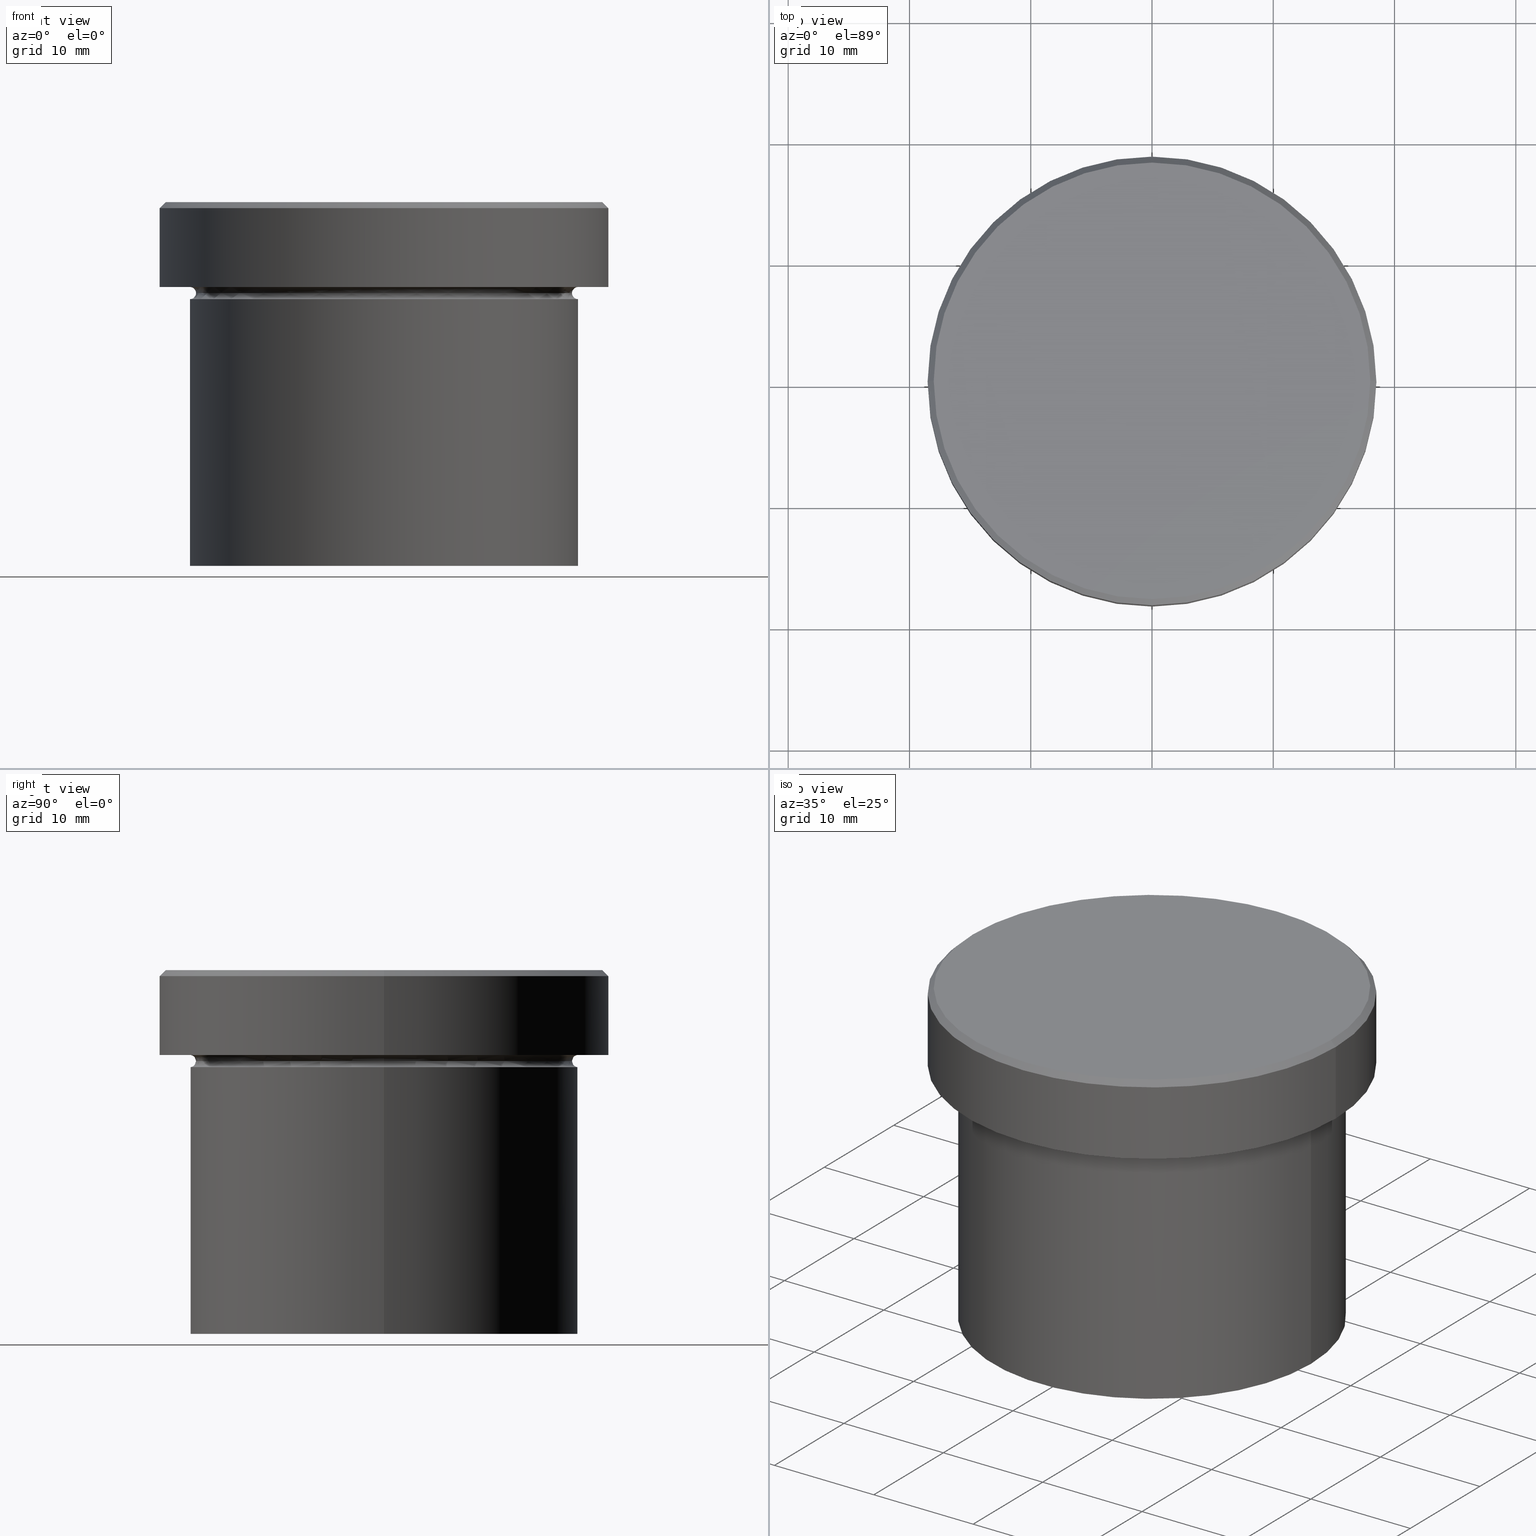
[diagram: canonical four-view strip — front | top / right | iso, engineering-drawing reading convention]
A machine part, canonical four-view strip (front | top / right | iso — engineering-drawing reading convention). The complete STEP part file that produces these views, byte-faithful:
ISO-10303-21;
HEADER;
FILE_DESCRIPTION (( 'STEP AP203' ),
    '1' );
FILE_NAME ('041a.STEP',
    '2024-01-02T19:17:21',
    ( '' ),
    ( '' ),
    'SwSTEP 2.0',
    'SolidWorks 2019',
    '' );
FILE_SCHEMA (( 'CONFIG_CONTROL_DESIGN' ));
ENDSEC;

DATA;
#1 = COORDINATED_UNIVERSAL_TIME_OFFSET ( 1, 0, .AHEAD. ) ;
#2 = DIRECTION ( 'NONE',  ( 1.000000000000000000, 0.000000000000000000, 0.000000000000000000 ) ) ;
#3 = AXIS2_PLACEMENT_3D ( 'NONE', #177, #66, #310 ) ;
#4 = DIRECTION ( 'NONE',  ( 1.000000000000000000, 0.000000000000000000, 0.000000000000000000 ) ) ;
#5 = AXIS2_PLACEMENT_3D ( 'NONE', #55, #352, #62 ) ;
#6 = PERSON_AND_ORGANIZATION_ROLE ( 'design_supplier' ) ;
#7 = CARTESIAN_POINT ( 'NONE',  ( -16.00000000000000000, 1.959434878635765131E-15, -7.500000000000000000 ) ) ;
#8 = PLANE ( 'NONE',  #178 ) ;
#9 = CARTESIAN_POINT ( 'NONE',  ( 0.000000000000000000, 0.000000000000000000, -30.00000000000000000 ) ) ;
#10 = DIRECTION ( 'NONE',  ( 1.000000000000000000, 0.000000000000000000, 0.000000000000000000 ) ) ;
#11 = EDGE_CURVE ( 'NONE', #261, #292, #179, .T. ) ;
#12 = CONICAL_SURFACE ( 'NONE', #195, 18.00000000000001066, 0.7853981633974378429 ) ;
#13 = DIRECTION ( 'NONE',  ( 1.000000000000000000, 0.000000000000000000, 0.000000000000000000 ) ) ;
#14 = DIRECTION ( 'NONE',  ( 0.000000000000000000, 0.000000000000000000, -1.000000000000000000 ) ) ;
#15 = FACE_OUTER_BOUND ( 'NONE', #109, .T. ) ;
#16 = CIRCLE ( 'NONE', #5, 18.50000000000000000 ) ;
#17 = VERTEX_POINT ( 'NONE', #374 ) ;
#18 = ORIENTED_EDGE ( 'NONE', *, *, #92, .F. ) ;
#19 = DIRECTION ( 'NONE',  ( 0.000000000000000000, 0.000000000000000000, -1.000000000000000000 ) ) ;
#20 = EDGE_CURVE ( 'NONE', #17, #227, #221, .T. ) ;
#21 = EDGE_LOOP ( 'NONE', ( #79, #380 ) ) ;
#22 = ORIENTED_EDGE ( 'NONE', *, *, #377, .F. ) ;
#23 = ORIENTED_EDGE ( 'NONE', *, *, #145, .T. ) ;
#24 = VERTEX_POINT ( 'NONE', #116 ) ;
#25 = ADVANCED_FACE ( 'NONE', ( #402 ), #256, .T. ) ;
#26 = EDGE_CURVE ( 'NONE', #192, #341, #82, .T. ) ;
#27 = PRODUCT_DEFINITION_FORMATION_WITH_SPECIFIED_SOURCE ( 'LIBOVOLN�', '', #40, .NOT_KNOWN. ) ;
#28 = AXIS2_PLACEMENT_3D ( 'NONE', #47, #283, #332 ) ;
#29 = CYLINDRICAL_SURFACE ( 'NONE', #398, 18.50000000000000000 ) ;
#30 = CARTESIAN_POINT ( 'NONE',  ( 0.000000000000000000, 0.000000000000000000, 0.000000000000000000 ) ) ;
#31 = PRODUCT_RELATED_PRODUCT_CATEGORY ( 'detail', '', ( #40 ) ) ;
#32 = LINE ( 'NONE', #203, #169 ) ;
#33 = CALENDAR_DATE ( 2024, 2, 1 ) ;
#34 = CARTESIAN_POINT ( 'NONE',  ( 0.000000000000000000, 0.000000000000000000, -7.500000000000000000 ) ) ;
#35 = EDGE_CURVE ( 'NONE', #263, #227, #162, .T. ) ;
#36 = DIRECTION ( 'NONE',  ( -0.000000000000000000, -0.000000000000000000, 1.000000000000000000 ) ) ;
#37 = DIRECTION ( 'NONE',  ( 1.000000000000000000, 0.000000000000000000, 0.000000000000000000 ) ) ;
#38 = CARTESIAN_POINT ( 'NONE',  ( 0.000000000000000000, 0.000000000000000000, 0.000000000000000000 ) ) ;
#39 = APPROVAL ( #172, 'NEUR�EN�' ) ;
#40 = PRODUCT ( '041a', '041a', '', ( #58 ) ) ;
#41 = AXIS2_PLACEMENT_3D ( 'NONE', #274, #59, #164 ) ;
#42 = CARTESIAN_POINT ( 'NONE',  ( -18.50000000000000000, 2.265596578422603396E-15, 0.000000000000000000 ) ) ;
#43 = DIRECTION ( 'NONE',  ( 1.000000000000000000, 0.000000000000000000, 0.000000000000000000 ) ) ;
#44 = CARTESIAN_POINT ( 'NONE',  ( 18.50000000000000000, 0.000000000000000000, -6.999999999999999112 ) ) ;
#45 = ORIENTED_EDGE ( 'NONE', *, *, #167, .T. ) ;
#46 = APPROVAL_PERSON_ORGANIZATION ( #301, #39, #132 ) ;
#47 = CARTESIAN_POINT ( 'NONE',  ( 0.000000000000000000, 0.000000000000000000, -7.500000000000000000 ) ) ;
#48 = ORIENTED_EDGE ( 'NONE', *, *, #146, .F. ) ;
#49 = ORIENTED_EDGE ( 'NONE', *, *, #20, .T. ) ;
#50 = ADVANCED_FACE ( 'NONE', ( #284 ), #219, .T. ) ;
#51 = EDGE_LOOP ( 'NONE', ( #122, #45, #49, #291 ) ) ;
#52 = ORIENTED_EDGE ( 'NONE', *, *, #146, .T. ) ;
#53 = APPROVAL ( #268, 'NEUR�EN�' ) ;
#54 = DIRECTION ( 'NONE',  ( 0.000000000000000000, 0.000000000000000000, 1.000000000000000000 ) ) ;
#55 = CARTESIAN_POINT ( 'NONE',  ( 0.000000000000000000, 0.000000000000000000, -0.5000000000000004441 ) ) ;
#56 = VECTOR ( 'NONE', #154, 1000.000000000000000 ) ;
#57 = ADVANCED_FACE ( 'NONE', ( #87 ), #264, .F. ) ;
#58 = MECHANICAL_CONTEXT ( 'NONE', #241, 'mechanical' ) ;
#59 = DIRECTION ( 'NONE',  ( 0.000000000000000000, 0.000000000000000000, -1.000000000000000000 ) ) ;
#60 = ADVANCED_FACE ( 'NONE', ( #340 ), #67, .F. ) ;
#61 = PERSON_AND_ORGANIZATION ( #191, #156 ) ;
#62 = DIRECTION ( 'NONE',  ( 1.000000000000000000, 0.000000000000000000, 0.000000000000000000 ) ) ;
#63 = CARTESIAN_POINT ( 'NONE',  ( 0.000000000000000000, 0.000000000000000000, -6.999999999999999112 ) ) ;
#64 = AXIS2_PLACEMENT_3D ( 'NONE', #200, #99, #2 ) ;
#65 = PERSON_AND_ORGANIZATION ( #191, #156 ) ;
#66 = DIRECTION ( 'NONE',  ( -1.224646799147353207E-16, 1.000000000000000000, 0.000000000000000000 ) ) ;
#67 = TOROIDAL_SURFACE ( 'NONE', #373, 16.00000000000000000, 0.5000000000000000000 ) ;
#68 = DIRECTION ( 'NONE',  ( -0.000000000000000000, -0.000000000000000000, 1.000000000000000000 ) ) ;
#69 = CARTESIAN_POINT ( 'NONE',  ( 0.000000000000000000, 0.000000000000000000, -6.999999999999999112 ) ) ;
#70 = LINE ( 'NONE', #72, #319 ) ;
#71 = FACE_OUTER_BOUND ( 'NONE', #331, .T. ) ;
#72 = CARTESIAN_POINT ( 'NONE',  ( 16.00000000000000000, 0.000000000000000000, 0.000000000000000000 ) ) ;
#73 = DIRECTION ( 'NONE',  ( 1.000000000000000000, 0.000000000000000000, 0.000000000000000000 ) ) ;
#74 = AXIS2_PLACEMENT_3D ( 'NONE', #337, #213, #43 ) ;
#75 = VECTOR ( 'NONE', #235, 1000.000000000000000 ) ;
#76 = AXIS2_PLACEMENT_3D ( 'NONE', #287, #80, #217 ) ;
#77 = ORIENTED_EDGE ( 'NONE', *, *, #342, .F. ) ;
#78 = EDGE_CURVE ( 'NONE', #266, #192, #244, .T. ) ;
#79 = ORIENTED_EDGE ( 'NONE', *, *, #311, .T. ) ;
#80 = DIRECTION ( 'NONE',  ( -0.000000000000000000, -0.000000000000000000, 1.000000000000000000 ) ) ;
#81 = APPROVAL_STATUS ( 'not_yet_approved' ) ;
#82 = LINE ( 'NONE', #369, #56 ) ;
#83 = SECURITY_CLASSIFICATION ( '', '', #134 ) ;
#84 = EDGE_CURVE ( 'NONE', #341, #292, #315, .T. ) ;
#85 = DIRECTION ( 'NONE',  ( 1.000000000000000000, 0.000000000000000000, 0.000000000000000000 ) ) ;
#86 = ORIENTED_EDGE ( 'NONE', *, *, #365, .T. ) ;
#87 = FACE_OUTER_BOUND ( 'NONE', #260, .T. ) ;
#88 = ORIENTED_EDGE ( 'NONE', *, *, #152, .T. ) ;
#89 = ORIENTED_EDGE ( 'NONE', *, *, #377, .T. ) ;
#90 = AXIS2_PLACEMENT_3D ( 'NONE', #108, #362, #110 ) ;
#91 = VERTEX_POINT ( 'NONE', #112 ) ;
#92 = EDGE_CURVE ( 'NONE', #192, #266, #379, .T. ) ;
#93 = COORDINATED_UNIVERSAL_TIME_OFFSET ( 1, 0, .AHEAD. ) ;
#94 = ORIENTED_EDGE ( 'NONE', *, *, #11, .F. ) ;
#95 = ORIENTED_EDGE ( 'NONE', *, *, #113, .T. ) ;
#96 = COORDINATED_UNIVERSAL_TIME_OFFSET ( 1, 0, .AHEAD. ) ;
#97 = CARTESIAN_POINT ( 'NONE',  ( 0.000000000000000000, 18.50000000000000000, -6.999999999999999112 ) ) ;
#98 = ADVANCED_FACE ( 'NONE', ( #215 ), #306, .T. ) ;
#99 = DIRECTION ( 'NONE',  ( -0.000000000000000000, -0.000000000000000000, 1.000000000000000000 ) ) ;
#100 = PERSON_AND_ORGANIZATION_ROLE ( 'creator' ) ;
#101 = FACE_OUTER_BOUND ( 'NONE', #361, .T. ) ;
#102 = CARTESIAN_POINT ( 'NONE',  ( 0.000000000000000000, 0.000000000000000000, -7.500000000000000000 ) ) ;
#103 = CARTESIAN_POINT ( 'NONE',  ( 0.000000000000000000, 0.000000000000000000, -6.999999999999999112 ) ) ;
#104 = DIRECTION ( 'NONE',  ( -0.7071067811865401342, 0.000000000000000000, -0.7071067811865549002 ) ) ;
#105 = AXIS2_PLACEMENT_3D ( 'NONE', #30, #54, #4 ) ;
#106 = AXIS2_PLACEMENT_3D ( 'NONE', #207, #282, #73 ) ;
#107 = ORIENTED_EDGE ( 'NONE', *, *, #298, .T. ) ;
#108 = CARTESIAN_POINT ( 'NONE',  ( 0.000000000000000000, 0.000000000000000000, 0.000000000000000000 ) ) ;
#109 = EDGE_LOOP ( 'NONE', ( #127, #52, #253, #77 ) ) ;
#110 = DIRECTION ( 'NONE',  ( 1.000000000000000000, 0.000000000000000000, 0.000000000000000000 ) ) ;
#111 = DIRECTION ( 'NONE',  ( -0.000000000000000000, -0.000000000000000000, 1.000000000000000000 ) ) ;
#112 = CARTESIAN_POINT ( 'NONE',  ( 18.50000000000000000, 0.000000000000000000, -0.5000000000000004441 ) ) ;
#113 = EDGE_CURVE ( 'NONE', #261, #263, #279, .T. ) ;
#114 = VERTEX_POINT ( 'NONE', #44 ) ;
#115 = CARTESIAN_POINT ( 'NONE',  ( 0.000000000000000000, 0.000000000000000000, -7.500000000000000000 ) ) ;
#116 = CARTESIAN_POINT ( 'NONE',  ( 18.00000000000001066, 2.234980408443920004E-15, 0.000000000000000000 ) ) ;
#117 = CC_DESIGN_PERSON_AND_ORGANIZATION_ASSIGNMENT ( #237, #6, ( #27 ) ) ;
#118 = CIRCLE ( 'NONE', #348, 18.50000000000000000 ) ;
#119 = AXIS2_PLACEMENT_3D ( 'NONE', #103, #383, #129 ) ;
#120 = ORIENTED_EDGE ( 'NONE', *, *, #11, .T. ) ;
#121 = ORIENTED_EDGE ( 'NONE', *, *, #185, .F. ) ;
#122 = ORIENTED_EDGE ( 'NONE', *, *, #113, .F. ) ;
#123 = ORIENTED_EDGE ( 'NONE', *, *, #342, .T. ) ;
#124 = TOROIDAL_SURFACE ( 'NONE', #408, 16.00000000000000000, 0.5000000000000000000 ) ;
#125 = AXIS2_PLACEMENT_3D ( 'NONE', #259, #339, #85 ) ;
#126 = CALENDAR_DATE ( 2024, 2, 1 ) ;
#127 = ORIENTED_EDGE ( 'NONE', *, *, #201, .T. ) ;
#128 = DATE_TIME_ROLE ( 'classification_date' ) ;
#129 = DIRECTION ( 'NONE',  ( 1.000000000000000000, 0.000000000000000000, 0.000000000000000000 ) ) ;
#130 = DATE_TIME_ROLE ( 'creation_date' ) ;
#131 = AXIS2_PLACEMENT_3D ( 'NONE', #387, #267, #299 ) ;
#132 = APPROVAL_ROLE ( '' ) ;
#133 = DIRECTION ( 'NONE',  ( -1.000000000000000000, 0.000000000000000000, 0.000000000000000000 ) ) ;
#134 = SECURITY_CLASSIFICATION_LEVEL ( 'unclassified' ) ;
#135 = ADVANCED_BREP_SHAPE_REPRESENTATION ( '041a', ( #289, #105 ), #378 ) ;
#136 = LINE ( 'NONE', #198, #174 ) ;
#137 = ADVANCED_FACE ( 'NONE', ( #15 ), #329, .T. ) ;
#138 = CARTESIAN_POINT ( 'NONE',  ( 0.000000000000000000, 0.000000000000000000, -8.000000000000000000 ) ) ;
#139 = DIRECTION ( 'NONE',  ( -1.000000000000000000, 0.000000000000000000, 0.000000000000000000 ) ) ;
#140 = DIRECTION ( 'NONE',  ( -0.000000000000000000, -0.000000000000000000, 1.000000000000000000 ) ) ;
#141 = VECTOR ( 'NONE', #367, 1000.000000000000000 ) ;
#142 = LOCAL_TIME ( 20, 17, 21.00000000000000000, #364 ) ;
#143 = AXIS2_PLACEMENT_3D ( 'NONE', #257, #184, #314 ) ;
#144 = ORIENTED_EDGE ( 'NONE', *, *, #147, .T. ) ;
#145 = EDGE_CURVE ( 'NONE', #266, #292, #70, .T. ) ;
#146 = EDGE_CURVE ( 'NONE', #345, #409, #250, .T. ) ;
#147 = EDGE_CURVE ( 'NONE', #91, #409, #118, .T. ) ;
#148 = ORIENTED_EDGE ( 'NONE', *, *, #26, .T. ) ;
#149 = DIRECTION ( 'NONE',  ( -0.000000000000000000, -0.000000000000000000, 1.000000000000000000 ) ) ;
#150 = CIRCLE ( 'NONE', #119, 18.50000000000000000 ) ;
#151 = ORIENTED_EDGE ( 'NONE', *, *, #147, .F. ) ;
#152 = EDGE_CURVE ( 'NONE', #24, #91, #136, .T. ) ;
#153 = EDGE_LOOP ( 'NONE', ( #407, #22, #86, #151 ) ) ;
#154 = DIRECTION ( 'NONE',  ( -0.000000000000000000, -0.000000000000000000, 1.000000000000000000 ) ) ;
#155 = ORIENTED_EDGE ( 'NONE', *, *, #236, .F. ) ;
#156 = ORGANIZATION ( 'NEUR�EN�', 'NEUR�EN�', '' ) ;
#157 = CLOSED_SHELL ( 'NONE', ( #170, #60, #57, #50, #137, #25, #98, #230, #223, #344, #354, #193, #180 ) ) ;
#158 = CARTESIAN_POINT ( 'NONE',  ( -16.00000000000000000, 0.000000000000000000, -7.500000000000000000 ) ) ;
#159 = ORIENTED_EDGE ( 'NONE', *, *, #20, .F. ) ;
#160 = ORIENTED_EDGE ( 'NONE', *, *, #167, .F. ) ;
#161 = TOROIDAL_SURFACE ( 'NONE', #41, 16.00000000000000000, 0.5000000000000000000 ) ;
#162 = CIRCLE ( 'NONE', #76, 16.00000000000000000 ) ;
#163 = PRODUCT_DEFINITION ( 'NEZN�M�', '', #27, #225 ) ;
#164 = DIRECTION ( 'NONE',  ( -1.000000000000000000, 0.000000000000000000, 0.000000000000000000 ) ) ;
#165 = DIRECTION ( 'NONE',  ( 1.000000000000000000, 0.000000000000000000, 0.000000000000000000 ) ) ;
#166 = CALENDAR_DATE ( 2024, 2, 1 ) ;
#167 = EDGE_CURVE ( 'NONE', #261, #17, #211, .T. ) ;
#168 = CC_DESIGN_APPROVAL ( #53, ( #27 ) ) ;
#169 = VECTOR ( 'NONE', #104, 1000.000000000000000 ) ;
#170 = ADVANCED_FACE ( 'NONE', ( #197 ), #313, .T. ) ;
#171 = DIRECTION ( 'NONE',  ( -0.000000000000000000, -0.000000000000000000, 1.000000000000000000 ) ) ;
#172 = APPROVAL_STATUS ( 'not_yet_approved' ) ;
#173 = FACE_OUTER_BOUND ( 'NONE', #51, .T. ) ;
#174 = VECTOR ( 'NONE', #234, 1000.000000000000000 ) ;
#175 = CC_DESIGN_APPROVAL ( #39, ( #163 ) ) ;
#176 = EDGE_CURVE ( 'NONE', #17, #261, #270, .T. ) ;
#177 = CARTESIAN_POINT ( 'NONE',  ( 16.00000000000000000, 1.959434878635765131E-15, -7.500000000000000000 ) ) ;
#178 = AXIS2_PLACEMENT_3D ( 'NONE', #97, #204, #245 ) ;
#179 = CIRCLE ( 'NONE', #143, 0.5000000000000004441 ) ;
#180 = ADVANCED_FACE ( 'NONE', ( #391 ), #12, .T. ) ;
#181 = ORIENTED_EDGE ( 'NONE', *, *, #254, .T. ) ;
#182 = CARTESIAN_POINT ( 'NONE',  ( 0.000000000000000000, 16.00000000000000000, -30.00000000000000000 ) ) ;
#183 = EDGE_LOOP ( 'NONE', ( #346, #148, #376, #222 ) ) ;
#184 = DIRECTION ( 'NONE',  ( 0.000000000000000000, -1.000000000000000000, 0.000000000000000000 ) ) ;
#185 = EDGE_CURVE ( 'NONE', #409, #91, #16, .T. ) ;
#186 = AXIS2_PLACEMENT_3D ( 'NONE', #34, #278, #165 ) ;
#187 = ORIENTED_EDGE ( 'NONE', *, *, #92, .T. ) ;
#188 = APPROVAL_PERSON_ORGANIZATION ( #233, #53, #240 ) ;
#189 = ORIENTED_EDGE ( 'NONE', *, *, #78, .F. ) ;
#190 = EDGE_LOOP ( 'NONE', ( #381, #187, #23, #317 ) ) ;
#191 = PERSON ( 'NEUR�EN�', 'NEUR�EN�', 'NEUR�EN�', ('NEUR�EN�'), ('NEUR�EN�'), ('NEUR�EN�') ) ;
#192 = VERTEX_POINT ( 'NONE', #305 ) ;
#193 = ADVANCED_FACE ( 'NONE', ( #173 ), #161, .F. ) ;
#194 = DATE_AND_TIME ( #126, #212 ) ;
#195 = AXIS2_PLACEMENT_3D ( 'NONE', #324, #302, #133 ) ;
#196 = PERSON_AND_ORGANIZATION_ROLE ( 'design_owner' ) ;
#197 = FACE_OUTER_BOUND ( 'NONE', #394, .T. ) ;
#198 = CARTESIAN_POINT ( 'NONE',  ( 18.00000000000001066, 2.204364238465237006E-15, 0.000000000000000000 ) ) ;
#199 =( NAMED_UNIT ( * ) PLANE_ANGLE_UNIT ( ) SI_UNIT ( $, .RADIAN. ) );
#200 = CARTESIAN_POINT ( 'NONE',  ( 0.000000000000000000, 0.000000000000000000, 0.000000000000000000 ) ) ;
#201 = EDGE_CURVE ( 'NONE', #114, #345, #150, .T. ) ;
#202 = CIRCLE ( 'NONE', #262, 0.5000000000000004441 ) ;
#203 = CARTESIAN_POINT ( 'NONE',  ( -18.00000000000001066, 0.000000000000000000, 0.000000000000000000 ) ) ;
#204 = DIRECTION ( 'NONE',  ( 0.000000000000000000, 0.000000000000000000, -1.000000000000000000 ) ) ;
#205 = DIRECTION ( 'NONE',  ( 0.000000000000000000, 0.000000000000000000, -1.000000000000000000 ) ) ;
#206 =( LENGTH_UNIT ( ) NAMED_UNIT ( * ) SI_UNIT ( .MILLI., .METRE. ) );
#207 = CARTESIAN_POINT ( 'NONE',  ( 0.000000000000000000, 0.000000000000000000, -8.000000000000000000 ) ) ;
#208 = CC_DESIGN_DATE_AND_TIME_ASSIGNMENT ( #382, #130, ( #163 ) ) ;
#209 = CARTESIAN_POINT ( 'NONE',  ( -18.50000000000000000, 2.265596578422603396E-15, -0.5000000000000004441 ) ) ;
#210 = CARTESIAN_POINT ( 'NONE',  ( 15.50000000000000000, 0.000000000000000000, -7.500000000000000000 ) ) ;
#211 = CIRCLE ( 'NONE', #232, 15.50000000000000000 ) ;
#212 = LOCAL_TIME ( 20, 17, 21.00000000000000000, #93 ) ;
#213 = DIRECTION ( 'NONE',  ( 0.000000000000000000, -0.000000000000000000, 1.000000000000000000 ) ) ;
#214 = AXIS2_PLACEMENT_3D ( 'NONE', #158, #399, #255 ) ;
#215 = FACE_OUTER_BOUND ( 'NONE', #401, .T. ) ;
#216 = PERSON_AND_ORGANIZATION ( #191, #156 ) ;
#217 = DIRECTION ( 'NONE',  ( -1.000000000000000000, 0.000000000000000000, 0.000000000000000000 ) ) ;
#218 = AXIS2_PLACEMENT_3D ( 'NONE', #251, #149, #368 ) ;
#219 = CYLINDRICAL_SURFACE ( 'NONE', #125, 16.00000000000000000 ) ;
#220 = LOCAL_TIME ( 20, 17, 21.00000000000000000, #273 ) ;
#221 = CIRCLE ( 'NONE', #214, 0.5000000000000004441 ) ;
#222 = ORIENTED_EDGE ( 'NONE', *, *, #145, .F. ) ;
#223 = ADVANCED_FACE ( 'NONE', ( #323, #101 ), #8, .T. ) ;
#224 = ORIENTED_EDGE ( 'NONE', *, *, #176, .T. ) ;
#225 = DESIGN_CONTEXT ( 'detailed design', #338, 'design' ) ;
#226 = AXIS2_PLACEMENT_3D ( 'NONE', #63, #171, #353 ) ;
#227 = VERTEX_POINT ( 'NONE', #328 ) ;
#228 = EDGE_LOOP ( 'NONE', ( #48, #107, #123, #144 ) ) ;
#229 = EDGE_LOOP ( 'NONE', ( #224, #95, #318, #159 ) ) ;
#230 = ADVANCED_FACE ( 'NONE', ( #295 ), #29, .T. ) ;
#231 = CALENDAR_DATE ( 2024, 2, 1 ) ;
#232 = AXIS2_PLACEMENT_3D ( 'NONE', #330, #269, #37 ) ;
#233 = PERSON_AND_ORGANIZATION ( #191, #156 ) ;
#234 = DIRECTION ( 'NONE',  ( 0.7071067811865401342, 8.659560562354844111E-17, -0.7071067811865549002 ) ) ;
#235 = DIRECTION ( 'NONE',  ( -0.000000000000000000, -0.000000000000000000, 1.000000000000000000 ) ) ;
#236 = EDGE_CURVE ( 'NONE', #24, #265, #400, .T. ) ;
#237 = PERSON_AND_ORGANIZATION ( #191, #156 ) ;
#238 = DIRECTION ( 'NONE',  ( 1.000000000000000000, 0.000000000000000000, 0.000000000000000000 ) ) ;
#239 = DIRECTION ( 'NONE',  ( 1.000000000000000000, 0.000000000000000000, 0.000000000000000000 ) ) ;
#240 = APPROVAL_ROLE ( '' ) ;
#241 = APPLICATION_CONTEXT ( 'configuration controlled 3d designs of mechanical parts and assemblies' ) ;
#242 = CIRCLE ( 'NONE', #252, 16.00000000000000000 ) ;
#243 = CARTESIAN_POINT ( 'NONE',  ( 0.000000000000000000, 0.000000000000000000, 0.000000000000000000 ) ) ;
#244 = CIRCLE ( 'NONE', #258, 16.00000000000000000 ) ;
#245 = DIRECTION ( 'NONE',  ( -1.000000000000000000, 0.000000000000000000, -0.000000000000000000 ) ) ;
#246 = ORIENTED_EDGE ( 'NONE', *, *, #298, .F. ) ;
#247 = CARTESIAN_POINT ( 'NONE',  ( 18.50000000000000000, 0.000000000000000000, 0.000000000000000000 ) ) ;
#248 = APPROVAL_ROLE ( '' ) ;
#249 = DIRECTION ( 'NONE',  ( -0.000000000000000000, -0.000000000000000000, 1.000000000000000000 ) ) ;
#250 = LINE ( 'NONE', #42, #141 ) ;
#251 = CARTESIAN_POINT ( 'NONE',  ( 0.000000000000000000, 0.000000000000000000, -30.00000000000000000 ) ) ;
#252 = AXIS2_PLACEMENT_3D ( 'NONE', #138, #249, #308 ) ;
#253 = ORIENTED_EDGE ( 'NONE', *, *, #185, .T. ) ;
#254 = EDGE_CURVE ( 'NONE', #17, #341, #202, .T. ) ;
#255 = DIRECTION ( 'NONE',  ( 0.000000000000000000, 0.000000000000000000, -1.000000000000000000 ) ) ;
#256 = PLANE ( 'NONE',  #272 ) ;
#257 = CARTESIAN_POINT ( 'NONE',  ( 16.00000000000000000, 0.000000000000000000, -7.500000000000000000 ) ) ;
#258 = AXIS2_PLACEMENT_3D ( 'NONE', #9, #356, #13 ) ;
#259 = CARTESIAN_POINT ( 'NONE',  ( 0.000000000000000000, 0.000000000000000000, 0.000000000000000000 ) ) ;
#260 = EDGE_LOOP ( 'NONE', ( #290, #181, #294, #94 ) ) ;
#261 = VERTEX_POINT ( 'NONE', #210 ) ;
#262 = AXIS2_PLACEMENT_3D ( 'NONE', #7, #366, #300 ) ;
#263 = VERTEX_POINT ( 'NONE', #277 ) ;
#264 = TOROIDAL_SURFACE ( 'NONE', #28, 16.00000000000000000, 0.5000000000000000000 ) ;
#265 = VERTEX_POINT ( 'NONE', #355 ) ;
#266 = VERTEX_POINT ( 'NONE', #275 ) ;
#267 = DIRECTION ( 'NONE',  ( 0.000000000000000000, 0.000000000000000000, -1.000000000000000000 ) ) ;
#268 = APPROVAL_STATUS ( 'not_yet_approved' ) ;
#269 = DIRECTION ( 'NONE',  ( -0.000000000000000000, -0.000000000000000000, 1.000000000000000000 ) ) ;
#270 = CIRCLE ( 'NONE', #186, 15.50000000000000000 ) ;
#271 = CC_DESIGN_PERSON_AND_ORGANIZATION_ASSIGNMENT ( #61, #100, ( #27 ) ) ;
#272 = AXIS2_PLACEMENT_3D ( 'NONE', #182, #19, #370 ) ;
#273 = COORDINATED_UNIVERSAL_TIME_OFFSET ( 1, 0, .AHEAD. ) ;
#274 = CARTESIAN_POINT ( 'NONE',  ( 0.000000000000000000, 0.000000000000000000, -7.500000000000000000 ) ) ;
#275 = CARTESIAN_POINT ( 'NONE',  ( 16.00000000000000000, 0.000000000000000000, -30.00000000000000000 ) ) ;
#276 = PERSON_AND_ORGANIZATION ( #191, #156 ) ;
#277 = CARTESIAN_POINT ( 'NONE',  ( 16.00000000000000000, 1.959434878635765131E-15, -6.999999999999999112 ) ) ;
#278 = DIRECTION ( 'NONE',  ( -0.000000000000000000, -0.000000000000000000, 1.000000000000000000 ) ) ;
#279 = CIRCLE ( 'NONE', #3, 0.5000000000000004441 ) ;
#280 = LOCAL_TIME ( 20, 17, 21.00000000000000000, #96 ) ;
#281 = CYLINDRICAL_SURFACE ( 'NONE', #90, 16.00000000000000000 ) ;
#282 = DIRECTION ( 'NONE',  ( -0.000000000000000000, -0.000000000000000000, 1.000000000000000000 ) ) ;
#283 = DIRECTION ( 'NONE',  ( -0.000000000000000000, -0.000000000000000000, 1.000000000000000000 ) ) ;
#284 = FACE_OUTER_BOUND ( 'NONE', #183, .T. ) ;
#285 = CC_DESIGN_PERSON_AND_ORGANIZATION_ASSIGNMENT ( #65, #326, ( #163 ) ) ;
#286 = AXIS2_PLACEMENT_3D ( 'NONE', #38, #309, #363 ) ;
#287 = CARTESIAN_POINT ( 'NONE',  ( 0.000000000000000000, 0.000000000000000000, -6.999999999999999112 ) ) ;
#288 = CIRCLE ( 'NONE', #357, 18.00000000000001066 ) ;
#289 = MANIFOLD_SOLID_BREP ( 'Zkosen�1', #157 ) ;
#290 = ORIENTED_EDGE ( 'NONE', *, *, #176, .F. ) ;
#291 = ORIENTED_EDGE ( 'NONE', *, *, #35, .F. ) ;
#292 = VERTEX_POINT ( 'NONE', #358 ) ;
#293 = AXIS2_PLACEMENT_3D ( 'NONE', #69, #36, #303 ) ;
#294 = ORIENTED_EDGE ( 'NONE', *, *, #84, .T. ) ;
#295 = FACE_OUTER_BOUND ( 'NONE', #228, .T. ) ;
#296 = APPLICATION_PROTOCOL_DEFINITION ( 'international standard', 'config_control_design', 1994, #338 ) ;
#297 = DIRECTION ( 'NONE',  ( -0.000000000000000000, -0.000000000000000000, 1.000000000000000000 ) ) ;
#298 = EDGE_CURVE ( 'NONE', #345, #114, #312, .T. ) ;
#299 = DIRECTION ( 'NONE',  ( -1.000000000000000000, 0.000000000000000000, 0.000000000000000000 ) ) ;
#300 = DIRECTION ( 'NONE',  ( -1.000000000000000000, 1.224646799147349509E-16, 0.000000000000000000 ) ) ;
#301 = PERSON_AND_ORGANIZATION ( #191, #156 ) ;
#302 = DIRECTION ( 'NONE',  ( 0.000000000000000000, 0.000000000000000000, -1.000000000000000000 ) ) ;
#303 = DIRECTION ( 'NONE',  ( 1.000000000000000000, 0.000000000000000000, 0.000000000000000000 ) ) ;
#304 = DATE_AND_TIME ( #166, #393 ) ;
#305 = CARTESIAN_POINT ( 'NONE',  ( -16.00000000000000000, 1.959434878635765131E-15, -30.00000000000000000 ) ) ;
#306 = PLANE ( 'NONE',  #74 ) ;
#307 = CARTESIAN_POINT ( 'NONE',  ( -18.50000000000000000, 2.265596578422603396E-15, -6.999999999999999112 ) ) ;
#308 = DIRECTION ( 'NONE',  ( 1.000000000000000000, 0.000000000000000000, 0.000000000000000000 ) ) ;
#309 = DIRECTION ( 'NONE',  ( -0.000000000000000000, -0.000000000000000000, 1.000000000000000000 ) ) ;
#310 = DIRECTION ( 'NONE',  ( -1.000000000000000000, -1.224646799147349509E-16, 0.000000000000000000 ) ) ;
#311 = EDGE_CURVE ( 'NONE', #227, #263, #333, .T. ) ;
#312 = CIRCLE ( 'NONE', #293, 18.50000000000000000 ) ;
#313 = CONICAL_SURFACE ( 'NONE', #131, 18.00000000000001066, 0.7853981633974378429 ) ;
#314 = DIRECTION ( 'NONE',  ( 0.000000000000000000, 0.000000000000000000, -1.000000000000000000 ) ) ;
#315 = CIRCLE ( 'NONE', #106, 16.00000000000000000 ) ;
#316 = ORIENTED_EDGE ( 'NONE', *, *, #201, .F. ) ;
#317 = ORIENTED_EDGE ( 'NONE', *, *, #84, .F. ) ;
#318 = ORIENTED_EDGE ( 'NONE', *, *, #311, .F. ) ;
#319 = VECTOR ( 'NONE', #111, 1000.000000000000000 ) ;
#320 = APPROVAL_PERSON_ORGANIZATION ( #216, #321, #248 ) ;
#321 = APPROVAL ( #81, 'NEUR�EN�' ) ;
#322 = PERSON_AND_ORGANIZATION ( #191, #156 ) ;
#323 = FACE_BOUND ( 'NONE', #21, .T. ) ;
#324 = CARTESIAN_POINT ( 'NONE',  ( 0.000000000000000000, 0.000000000000000000, 0.000000000000000000 ) ) ;
#325 =( NAMED_UNIT ( * ) SI_UNIT ( $, .STERADIAN. ) SOLID_ANGLE_UNIT ( ) );
#326 = PERSON_AND_ORGANIZATION_ROLE ( 'creator' ) ;
#327 = LINE ( 'NONE', #247, #75 ) ;
#328 = CARTESIAN_POINT ( 'NONE',  ( -16.00000000000000000, 0.000000000000000000, -6.999999999999999112 ) ) ;
#329 = CYLINDRICAL_SURFACE ( 'NONE', #286, 18.50000000000000000 ) ;
#330 = CARTESIAN_POINT ( 'NONE',  ( 0.000000000000000000, 0.000000000000000000, -7.500000000000000000 ) ) ;
#331 = EDGE_LOOP ( 'NONE', ( #405, #160, #120, #404 ) ) ;
#332 = DIRECTION ( 'NONE',  ( 1.000000000000000000, 0.000000000000000000, 0.000000000000000000 ) ) ;
#333 = CIRCLE ( 'NONE', #226, 16.00000000000000000 ) ;
#334 = CARTESIAN_POINT ( 'NONE',  ( 0.000000000000000000, 0.000000000000000000, -0.5000000000000004441 ) ) ;
#335 = CC_DESIGN_DATE_AND_TIME_ASSIGNMENT ( #194, #128, ( #83 ) ) ;
#336 = ORIENTED_EDGE ( 'NONE', *, *, #236, .T. ) ;
#337 = CARTESIAN_POINT ( 'NONE',  ( 0.000000000000000000, 0.000000000000000000, 0.000000000000000000 ) ) ;
#338 = APPLICATION_CONTEXT ( 'configuration controlled 3d designs of mechanical parts and assemblies' ) ;
#339 = DIRECTION ( 'NONE',  ( -0.000000000000000000, -0.000000000000000000, 1.000000000000000000 ) ) ;
#340 = FACE_OUTER_BOUND ( 'NONE', #229, .T. ) ;
#341 = VERTEX_POINT ( 'NONE', #389 ) ;
#342 = EDGE_CURVE ( 'NONE', #114, #91, #327, .T. ) ;
#343 = ORIENTED_EDGE ( 'NONE', *, *, #365, .F. ) ;
#344 = ADVANCED_FACE ( 'NONE', ( #396 ), #281, .T. ) ;
#345 = VERTEX_POINT ( 'NONE', #307 ) ;
#346 = ORIENTED_EDGE ( 'NONE', *, *, #78, .T. ) ;
#347 = EDGE_CURVE ( 'NONE', #292, #341, #242, .T. ) ;
#348 = AXIS2_PLACEMENT_3D ( 'NONE', #334, #14, #350 ) ;
#349 = APPLICATION_PROTOCOL_DEFINITION ( 'international standard', 'config_control_design', 1994, #241 ) ;
#350 = DIRECTION ( 'NONE',  ( 1.000000000000000000, 0.000000000000000000, 0.000000000000000000 ) ) ;
#351 = DATE_AND_TIME ( #231, #280 ) ;
#352 = DIRECTION ( 'NONE',  ( 0.000000000000000000, 0.000000000000000000, -1.000000000000000000 ) ) ;
#353 = DIRECTION ( 'NONE',  ( -1.000000000000000000, 0.000000000000000000, 0.000000000000000000 ) ) ;
#354 = ADVANCED_FACE ( 'NONE', ( #71 ), #124, .F. ) ;
#355 = CARTESIAN_POINT ( 'NONE',  ( -18.00000000000001066, 0.000000000000000000, 0.000000000000000000 ) ) ;
#356 = DIRECTION ( 'NONE',  ( -0.000000000000000000, -0.000000000000000000, 1.000000000000000000 ) ) ;
#357 = AXIS2_PLACEMENT_3D ( 'NONE', #243, #68, #10 ) ;
#358 = CARTESIAN_POINT ( 'NONE',  ( 16.00000000000000000, 0.000000000000000000, -8.000000000000000000 ) ) ;
#359 = CARTESIAN_POINT ( 'NONE',  ( 0.000000000000000000, 0.000000000000000000, 0.000000000000000000 ) ) ;
#360 = SHAPE_DEFINITION_REPRESENTATION ( #395, #135 ) ;
#361 = EDGE_LOOP ( 'NONE', ( #316, #246 ) ) ;
#362 = DIRECTION ( 'NONE',  ( -0.000000000000000000, -0.000000000000000000, 1.000000000000000000 ) ) ;
#363 = DIRECTION ( 'NONE',  ( 1.000000000000000000, 0.000000000000000000, 0.000000000000000000 ) ) ;
#364 = COORDINATED_UNIVERSAL_TIME_OFFSET ( 1, 0, .AHEAD. ) ;
#365 = EDGE_CURVE ( 'NONE', #265, #409, #32, .T. ) ;
#366 = DIRECTION ( 'NONE',  ( 1.224646799147353207E-16, 1.000000000000000000, 0.000000000000000000 ) ) ;
#367 = DIRECTION ( 'NONE',  ( -0.000000000000000000, -0.000000000000000000, 1.000000000000000000 ) ) ;
#368 = DIRECTION ( 'NONE',  ( 1.000000000000000000, 0.000000000000000000, 0.000000000000000000 ) ) ;
#369 = CARTESIAN_POINT ( 'NONE',  ( -16.00000000000000000, 1.959434878635765131E-15, 0.000000000000000000 ) ) ;
#370 = DIRECTION ( 'NONE',  ( -1.000000000000000000, 0.000000000000000000, -0.000000000000000000 ) ) ;
#371 = CC_DESIGN_PERSON_AND_ORGANIZATION_ASSIGNMENT ( #322, #196, ( #40 ) ) ;
#372 = CC_DESIGN_APPROVAL ( #321, ( #83 ) ) ;
#373 = AXIS2_PLACEMENT_3D ( 'NONE', #115, #205, #139 ) ;
#374 = CARTESIAN_POINT ( 'NONE',  ( -15.50000000000000000, 1.928818708657081344E-15, -7.500000000000000000 ) ) ;
#375 = EDGE_LOOP ( 'NONE', ( #189, #18 ) ) ;
#376 = ORIENTED_EDGE ( 'NONE', *, *, #347, .F. ) ;
#377 = EDGE_CURVE ( 'NONE', #265, #24, #288, .T. ) ;
#378 =( GEOMETRIC_REPRESENTATION_CONTEXT ( 3 ) GLOBAL_UNCERTAINTY_ASSIGNED_CONTEXT ( ( #406 ) ) GLOBAL_UNIT_ASSIGNED_CONTEXT ( ( #206, #199, #325 ) ) REPRESENTATION_CONTEXT ( 'NONE', 'WORKASPACE' ) );
#379 = CIRCLE ( 'NONE', #218, 16.00000000000000000 ) ;
#380 = ORIENTED_EDGE ( 'NONE', *, *, #35, .T. ) ;
#381 = ORIENTED_EDGE ( 'NONE', *, *, #26, .F. ) ;
#382 = DATE_AND_TIME ( #33, #220 ) ;
#383 = DIRECTION ( 'NONE',  ( -0.000000000000000000, -0.000000000000000000, 1.000000000000000000 ) ) ;
#384 = APPROVAL_DATE_TIME ( #304, #39 ) ;
#385 = CC_DESIGN_SECURITY_CLASSIFICATION ( #83, ( #27 ) ) ;
#386 = APPROVAL_DATE_TIME ( #351, #53 ) ;
#387 = CARTESIAN_POINT ( 'NONE',  ( 0.000000000000000000, 0.000000000000000000, 0.000000000000000000 ) ) ;
#388 = DATE_AND_TIME ( #392, #142 ) ;
#389 = CARTESIAN_POINT ( 'NONE',  ( -16.00000000000000000, 1.959434878635765131E-15, -8.000000000000000000 ) ) ;
#390 = PERSON_AND_ORGANIZATION_ROLE ( 'classification_officer' ) ;
#391 = FACE_OUTER_BOUND ( 'NONE', #153, .T. ) ;
#392 = CALENDAR_DATE ( 2024, 2, 1 ) ;
#393 = LOCAL_TIME ( 20, 17, 21.00000000000000000, #1 ) ;
#394 = EDGE_LOOP ( 'NONE', ( #155, #88, #121, #343 ) ) ;
#395 = PRODUCT_DEFINITION_SHAPE ( 'NONE', 'NONE',  #163 ) ;
#396 = FACE_OUTER_BOUND ( 'NONE', #190, .T. ) ;
#397 = APPROVAL_DATE_TIME ( #388, #321 ) ;
#398 = AXIS2_PLACEMENT_3D ( 'NONE', #359, #297, #238 ) ;
#399 = DIRECTION ( 'NONE',  ( -0.000000000000000000, -1.000000000000000000, -0.000000000000000000 ) ) ;
#400 = CIRCLE ( 'NONE', #64, 18.00000000000001066 ) ;
#401 = EDGE_LOOP ( 'NONE', ( #89, #336 ) ) ;
#402 = FACE_OUTER_BOUND ( 'NONE', #375, .T. ) ;
#403 = CC_DESIGN_PERSON_AND_ORGANIZATION_ASSIGNMENT ( #276, #390, ( #83 ) ) ;
#404 = ORIENTED_EDGE ( 'NONE', *, *, #347, .T. ) ;
#405 = ORIENTED_EDGE ( 'NONE', *, *, #254, .F. ) ;
#406 = UNCERTAINTY_MEASURE_WITH_UNIT (LENGTH_MEASURE( 1.000000000000000082E-05 ), #206, 'distance_accuracy_value', 'NONE');
#407 = ORIENTED_EDGE ( 'NONE', *, *, #152, .F. ) ;
#408 = AXIS2_PLACEMENT_3D ( 'NONE', #102, #140, #239 ) ;
#409 = VERTEX_POINT ( 'NONE', #209 ) ;
ENDSEC;
END-ISO-10303-21;
